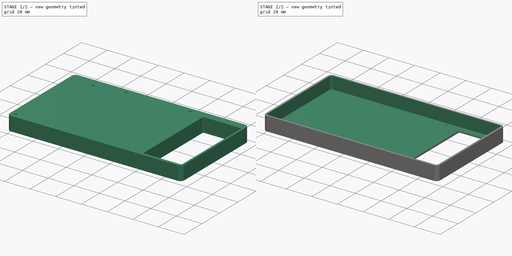
[diagram: build sequence overview — one tinted view per stage of 2, left to right]
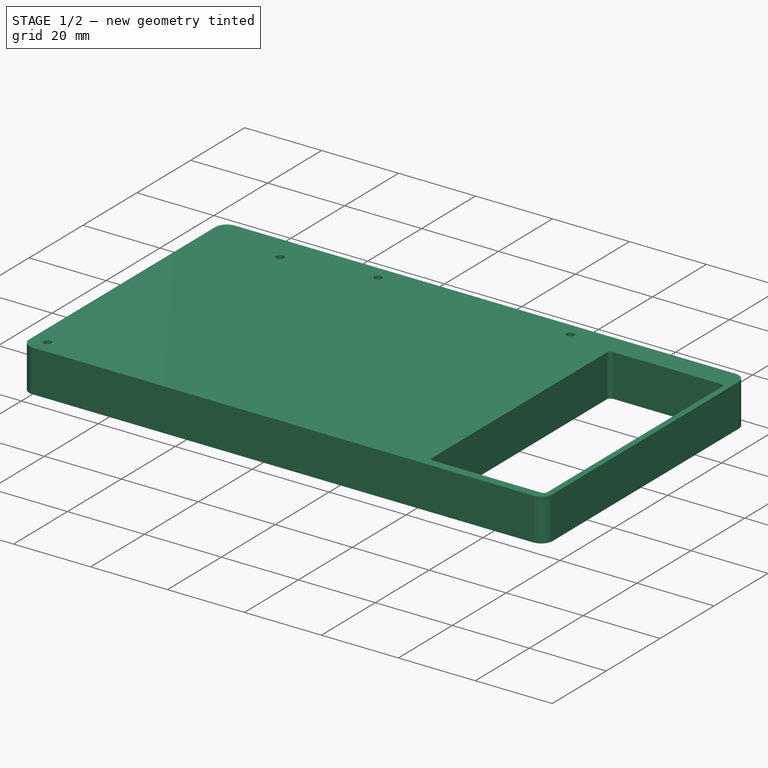
[diagram: stage 1 of 2 — iso view after this stage's code; geometry added in this stage tinted green]
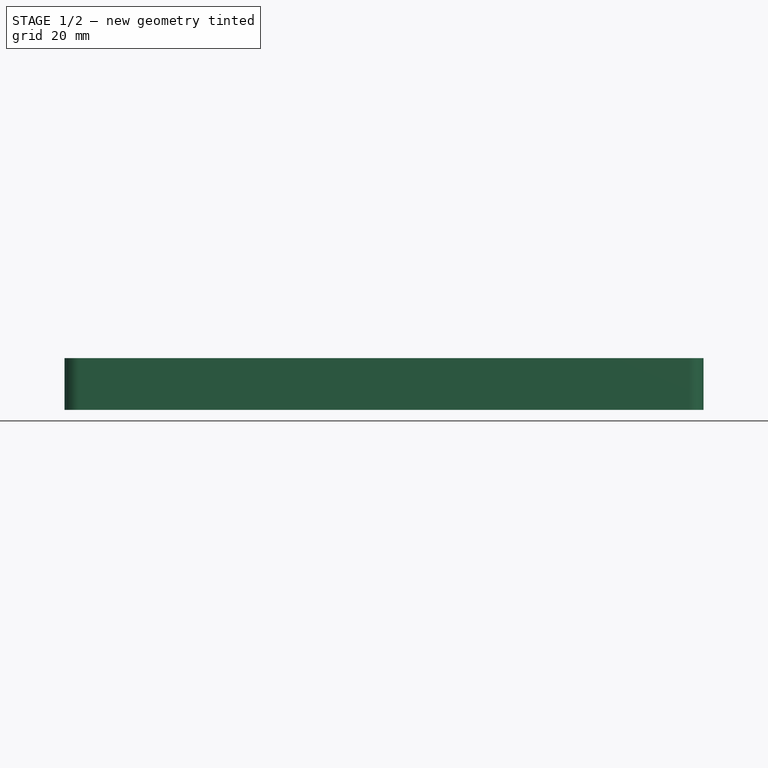
[diagram: stage 1 of 2 — front view after this stage's code; geometry added in this stage tinted green]
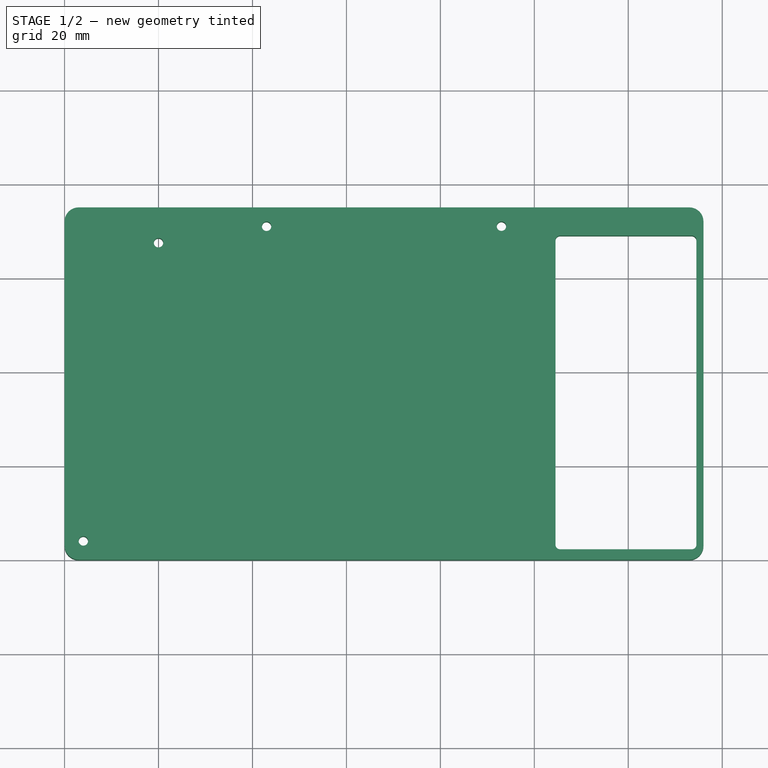
[diagram: stage 1 of 2 — top view after this stage's code; geometry added in this stage tinted green]
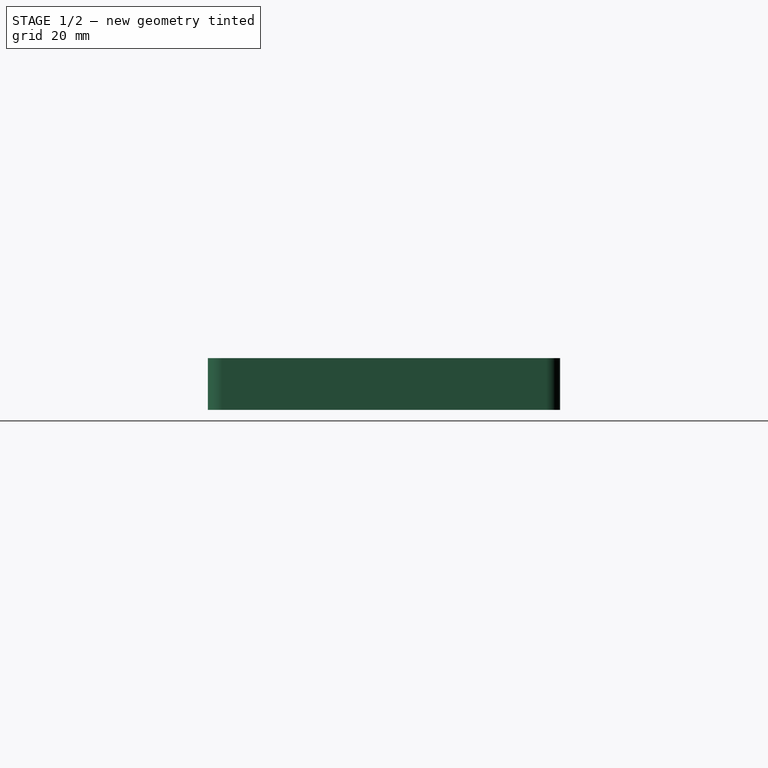
[diagram: stage 1 of 2 — right view after this stage's code; geometry added in this stage tinted green]
FCSTD DOCUMENT  (FreeCAD 0.22R38385 (Git))
Label: ndsi case 
License: All rights reserved
objects: Sketcher::SketchObject×1, PartDesign::Pad×1, PartDesign::Thickness×1, PartDesign::Body×1
note: 9 computed .brp shape members not serialized (recipe doc carries the construction recipe); baked Part::Feature solids carry a one-line shape summary decoded from their .brp

FEATURE [Sketcher::SketchObject] Sketch
  ArcFitTolerance = 1e-06
  AttachmentSupport = -> [XY_Plane]
  FullyConstrained = false
  MakeInternals = false
  MapMode = 5
  sketch-geometry (53):
    g0: LineSegment StartX=3 StartY=0 StartZ=0 EndX=133 EndY=0 EndZ=0
    g1: LineSegment StartX=136 StartY=3 StartZ=0 EndX=136 EndY=72 EndZ=0
    g2: LineSegment StartX=133 StartY=75 StartZ=0 EndX=3 EndY=75 EndZ=0
    g3: LineSegment StartX=0 StartY=72 StartZ=0 EndX=0 EndY=3 EndZ=0
    g4: ArcOfCircle CenterX=3 CenterY=3 CenterZ=0 NormalX=0 NormalY=0 NormalZ=1 AngleXU=0 Radius=3 StartAngle=3.14159 EndAngle=4.71239
    g5: ArcOfCircle CenterX=133 CenterY=3 CenterZ=0 NormalX=0 NormalY=0 NormalZ=1 AngleXU=0 Radius=3 StartAngle=4.71239 EndAngle=6.28319
    g6: ArcOfCircle CenterX=133 CenterY=72 CenterZ=0 NormalX=0 NormalY=0 NormalZ=1 AngleXU=0 Radius=3 StartAngle=-9e-16 EndAngle=1.5708
    g7: ArcOfCircle CenterX=3 CenterY=72 CenterZ=0 NormalX=0 NormalY=0 NormalZ=1 AngleXU=0 Radius=3 StartAngle=1.5708 EndAngle=3.14159
    g8: GeomPoint [constr] X=0 Y=0 Z=0
    g9: GeomPoint [constr] X=136 Y=75 Z=0
    g10: LineSegment [constr] StartX=136 StartY=0 StartZ=0 EndX=136 EndY=4 EndZ=0
    g11: LineSegment [constr] StartX=136 StartY=4 StartZ=0 EndX=106 EndY=4 EndZ=0
    g12: LineSegment [constr] StartX=106 StartY=4 StartZ=0 EndX=106 EndY=0 EndZ=0
    g13: LineSegment [constr] StartX=106 StartY=0 StartZ=0 EndX=136 EndY=0 EndZ=0
    g14: LineSegment [constr] StartX=136 StartY=75 StartZ=0 EndX=106 EndY=75 EndZ=0
    g15: LineSegment [constr] StartX=106 StartY=75 StartZ=0 EndX=106 EndY=67.5 EndZ=0
    g16: LineSegment [constr] StartX=106 StartY=67.5 StartZ=0 EndX=136 EndY=67.5 EndZ=0
    g17: LineSegment [constr] StartX=136 StartY=67.5 StartZ=0 EndX=136 EndY=75 EndZ=0
    g18: LineSegment [constr] StartX=0 StartY=0 StartZ=0 EndX=4 EndY=0 EndZ=0
    g19: LineSegment [constr] StartX=4 StartY=0 StartZ=0 EndX=4 EndY=4 EndZ=0
    g20: LineSegment [constr] StartX=4 StartY=4 StartZ=0 EndX=0 EndY=4 EndZ=0
    g21: LineSegment [constr] StartX=0 StartY=4 StartZ=0 EndX=0 EndY=0 EndZ=0
    g22: LineSegment [constr] StartX=0 StartY=74.9863 StartZ=0 EndX=0 EndY=67.4863 EndZ=0
    g23: LineSegment [constr] StartX=0 StartY=67.4863 StartZ=0 EndX=20 EndY=67.4863 EndZ=0
    g24: LineSegment [constr] StartX=20 StartY=67.4863 StartZ=0 EndX=20 EndY=74.9863 EndZ=0
    g25: LineSegment [constr] StartX=20 StartY=74.9863 StartZ=0 EndX=0 EndY=74.9863 EndZ=0
    g26: LineSegment [constr] StartX=0 StartY=74.9863 StartZ=0 EndX=0 EndY=70.9863 EndZ=0
    g27: LineSegment [constr] StartX=0 StartY=70.9863 StartZ=0 EndX=43 EndY=70.9863 EndZ=0
    g28: LineSegment [constr] StartX=43 StartY=70.9863 StartZ=0 EndX=43 EndY=74.9863 EndZ=0
    g29: LineSegment [constr] StartX=43 StartY=74.9863 StartZ=0 EndX=0 EndY=74.9863 EndZ=0
    g30: LineSegment [constr] StartX=136 StartY=75 StartZ=0 EndX=93 EndY=75 EndZ=0
    g31: LineSegment [constr] StartX=93 StartY=75 StartZ=0 EndX=93 EndY=71 EndZ=0
    g32: LineSegment [constr] StartX=93 StartY=71 StartZ=0 EndX=136 EndY=71 EndZ=0
    g33: LineSegment [constr] StartX=136 StartY=71 StartZ=0 EndX=136 EndY=75 EndZ=0
    g34: Circle CenterX=20 CenterY=67.4863 CenterZ=0 NormalX=0 NormalY=0 NormalZ=1 AngleXU=0 Radius=1
    g35: Circle CenterX=43 CenterY=70.9863 CenterZ=0 NormalX=0 NormalY=0 NormalZ=1 AngleXU=0 Radius=1
    g36: Circle CenterX=93 CenterY=71 CenterZ=0 NormalX=0 NormalY=0 NormalZ=1 AngleXU=0 Radius=1
    g37: Circle [constr] CenterX=106 CenterY=67.5 CenterZ=0 NormalX=0 NormalY=0 NormalZ=1 AngleXU=0 Radius=1
    g38: Circle [constr] CenterX=106 CenterY=4 CenterZ=0 NormalX=0 NormalY=0 NormalZ=1 AngleXU=0 Radius=0
    g39: Circle [constr] CenterX=106 CenterY=4 CenterZ=0 NormalX=0 NormalY=0 NormalZ=1 AngleXU=0 Radius=1
    g40: Circle CenterX=4 CenterY=4 CenterZ=0 NormalX=0 NormalY=0 NormalZ=1 AngleXU=0 Radius=1
    g41: LineSegment StartX=104.5 StartY=68 StartZ=0 EndX=104.5 EndY=3.2212 EndZ=0
    g42: LineSegment StartX=105.5 StartY=2.2212 StartZ=0 EndX=133.5 EndY=2.2212 EndZ=0
    g43: LineSegment StartX=134.5 StartY=3.2212 StartZ=0 EndX=134.5 EndY=68 EndZ=0
    g44: LineSegment StartX=133.5 StartY=69 StartZ=0 EndX=105.5 EndY=69 EndZ=0
    g45: ArcOfCircle CenterX=105.5 CenterY=68 CenterZ=0 NormalX=0 NormalY=0 NormalZ=1 AngleXU=0 Radius=1 StartAngle=1.5708 EndAngle=3.14159
    g46: ArcOfCircle CenterX=105.5 CenterY=3.2212 CenterZ=0 NormalX=0 NormalY=0 NormalZ=1 AngleXU=0 Radius=1 StartAngle=3.14159 EndAngle=4.71239
    g47: ArcOfCircle CenterX=133.5 CenterY=3.2212 CenterZ=0 NormalX=0 NormalY=0 NormalZ=1 AngleXU=0 Radius=1 StartAngle=4.71239 EndAngle=6.28319
    g48: ArcOfCircle CenterX=133.5 CenterY=68 CenterZ=0 NormalX=0 NormalY=0 NormalZ=1 AngleXU=0 Radius=1 StartAngle=1.8e-15 EndAngle=1.5708
    g49: GeomPoint [constr] X=104.5 Y=69 Z=0
    g50: GeomPoint [constr] X=134.5 Y=2.2212 Z=0
    g51: LineSegment [constr] StartX=136 StartY=3 StartZ=0 EndX=136 EndY=0 EndZ=0
    g52: LineSegment [constr] StartX=133 StartY=0 StartZ=0 EndX=136 EndY=0 EndZ=0
  constraints (130):
    c: Tangent(g0,g4) = -1.5708
    c: Tangent(g0,g5) = -1.5708
    c: Tangent(g1,g5) = -1.5708
    c: Tangent(g1,g6) = -1.5708
    c: Tangent(g2,g6) = -1.5708
    c: Tangent(g2,g7) = -1.5708
    c: Tangent(g3,g7) = -1.5708
    c: Tangent(g3,g4) = -1.5708
    c: Horizontal(g0)
    c: Horizontal(g2)
    c: Vertical(g1)
    c: Vertical(g3)
    c: Equal(g4,g5)
    c: Equal(g5,g6)
    c: Equal(g6,g7)
    c: PointOnObject(g8,g0)
    c: PointOnObject(g8,g3)
    c: PointOnObject(g9,g1)
    c: PointOnObject(g9,g2)
    c: Distance(g1,g3) = 136
    c: Distance(g0,g2) = 75
    c: Radius(g5) = 3
    c: Coincident(g8,g-1)
    c: Coincident(g10,g11)
    c: Coincident(g11,g12)
    c: Coincident(g12,g13)
    c: Coincident(g13,g10)
    c: Vertical(g10)
    c: Vertical(g12)
    c: Horizontal(g11)
    c: Horizontal(g13)
    c: Distance(g10,g12) = 30
    c: Distance(g11,g13) = 4
    c: Coincident(g14,g15)
    c: Coincident(g15,g16)
    c: Coincident(g16,g17)
    c: Coincident(g17,g14)
    c: Horizontal(g14)
    c: Horizontal(g16)
    c: Vertical(g15)
    c: Vertical(g17)
    c: Distance(g15,g17) = 30
    c: Distance(g14,g16) = 7.5
    c: Coincident(g14,g9)
    c: Coincident(g18,g19)
    c: Coincident(g19,g20)
    c: Coincident(g20,g21)
    c: Coincident(g21,g18)
    c: Horizontal(g18)
    c: Horizontal(g20)
    c: Vertical(g19)
    c: Vertical(g21)
    c: Distance(g19,g21) = 4
    c: Distance(g18,g20) = 4
    c: Coincident(g18,g8)
    c: Coincident(g22,g23)
    c: Coincident(g23,g24)
    c: Coincident(g24,g25)
    c: Coincident(g25,g22)
    c: Vertical(g22)
    c: Vertical(g24)
    c: Horizontal(g23)
    c: Horizontal(g25)
    c: Distance(g22,g24) = 20
    c: Distance(g23,g25) = 7.5
    c: PointOnObject(g22,g-2)
    c: Coincident(g26,g27)
    c: Coincident(g27,g28)
    c: Coincident(g28,g29)
    c: Coincident(g29,g26)
    c: Vertical(g26)
    c: Vertical(g28)
    c: Horizontal(g27)
    c: Horizontal(g29)
    c: Distance(g26,g28) = 43
    c: Distance(g27,g29) = 4
    c: Coincident(g26,g22)
    c: Coincident(g30,g31)
    c: Coincident(g31,g32)
    c: Coincident(g32,g33)
    c: Coincident(g33,g30)
    c: Horizontal(g30)
    c: Horizontal(g32)
    c: Vertical(g31)
    c: Vertical(g33)
    c: Distance(g31,g33) = 43
    c: Distance(g30,g32) = 4
    c: Coincident(g30,g9)
    c: Diameter(g34) = 2
    c: Tangent(g34,g23) = -1.5708
    c: Diameter(g35) = 2
    c: Coincident(g35,g27)
    c: Diameter(g36) = 2
    c: Coincident(g36,g31)
    c: Diameter(g37) = 2
    c: Coincident(g37,g15)
    c: Diameter(g39) = 2
    c: Coincident(g39,g38)
    c: Diameter(g40) = 2
    c: Coincident(g40,g19)
    c: Tangent(g41,g45) = -1.5708
    c: Tangent(g41,g46) = -1.5708
    c: Tangent(g42,g46) = -1.5708
    c: Tangent(g42,g47) = -1.5708
    c: Tangent(g43,g47) = -1.5708
    c: Tangent(g43,g48) = -1.5708
    c: Tangent(g44,g48) = -1.5708
    c: Tangent(g44,g45) = -1.5708
    c: Vertical(g41)
    c: Vertical(g43)
    c: Horizontal(g42)
    c: Horizontal(g44)
    c: Equal(g45,g46)
    c: Equal(g46,g47)
    c: Equal(g47,g48)
    c: PointOnObject(g49,g41)
    c: PointOnObject(g49,g44)
    c: PointOnObject(g50,g42)
    c: PointOnObject(g50,g43)
    c: Radius(g46) = 1
    c: Distance(g37,g44) = 0.5
    c: Distance(g37,g41) = 0.5
    c: Coincident(g51,g1)
    c: Vertical(g51)
    c: Coincident(g52,g51)
    c: Coincident(g52,g0)
    c: PointOnObject(g51,g-1)
    c: Coincident(g51,g10)
    c: Coincident(g38,g11)
    c: Distance(g1,g43) = 1.5
FEATURE [PartDesign::Pad] Pad
  Direction = (0,0,1)
  Length = 11
  Length2 = 10
  Profile = -> Sketch
  ReferenceAxis = -> Sketch [N_Axis]
  Refine = true
  Suppressed = false
  Type = 0
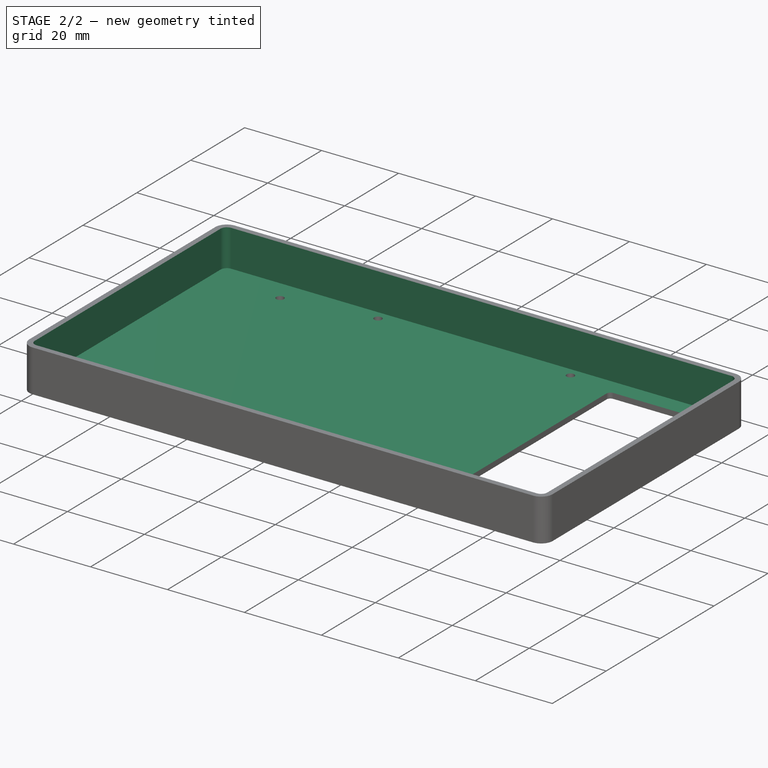
[diagram: stage 2 of 2 — iso view after this stage's code; geometry added in this stage tinted green]
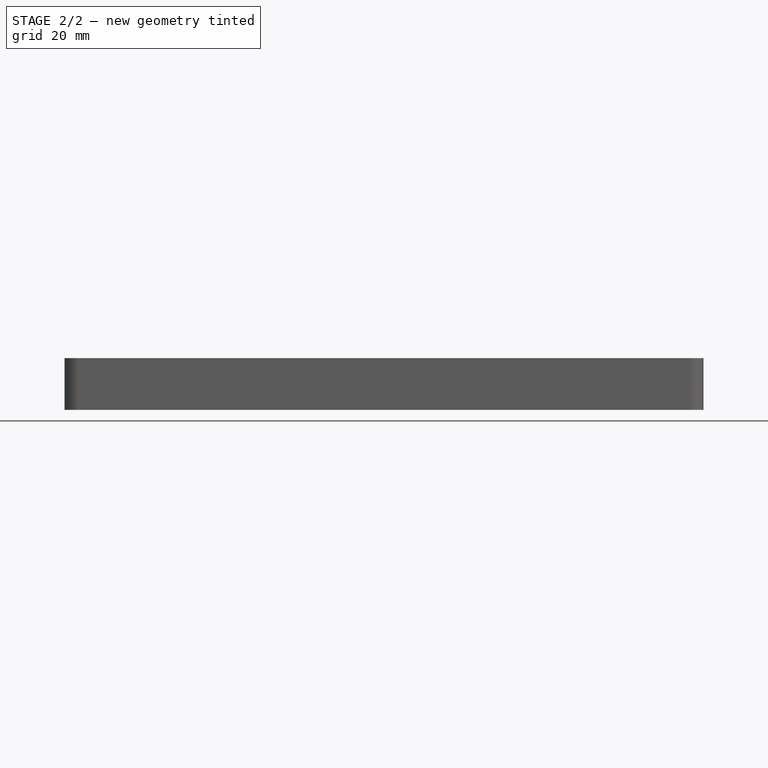
[diagram: stage 2 of 2 — front view after this stage's code; geometry added in this stage tinted green]
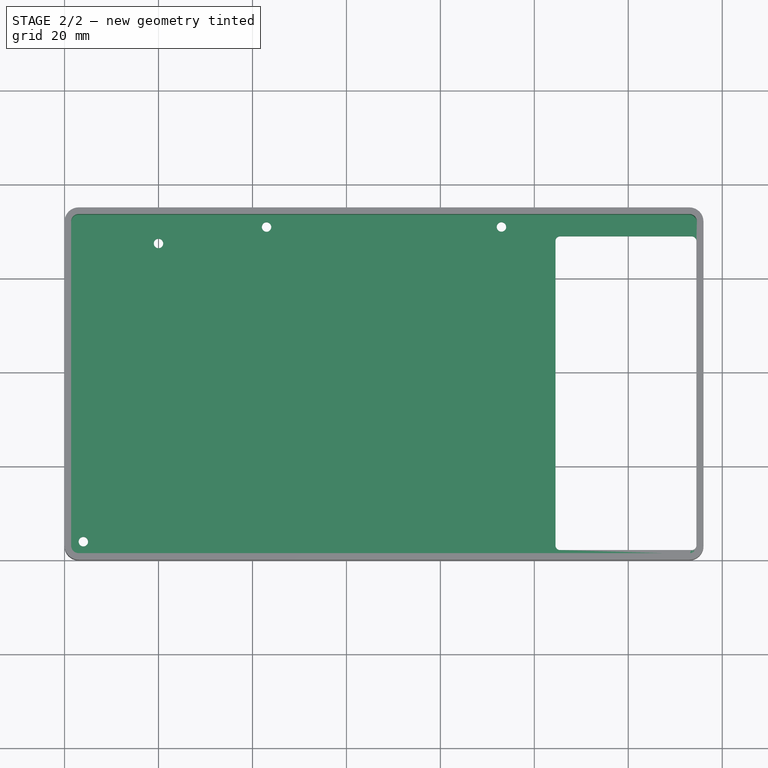
[diagram: stage 2 of 2 — top view after this stage's code; geometry added in this stage tinted green]
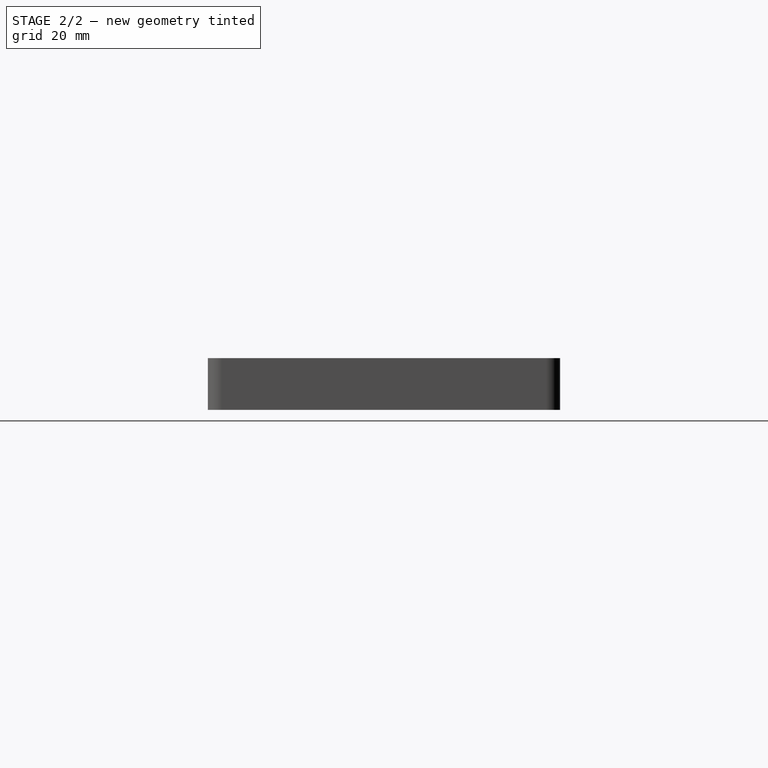
[diagram: stage 2 of 2 — right view after this stage's code; geometry added in this stage tinted green]
FEATURE [PartDesign::Thickness] Thickness
  Base = -> Pad [Face22,Face9,Face16,Face15,Face14,Face13,Face11,Face12,Face10,Face17,Face18,Face19,Face20]
  BaseFeature = -> Pad
  Intersection = false
  Join = 0
  Mode = 0
  Refine = true
  Reversed = true
  SupportTransform = false
  Suppressed = false
  Value = 1.4
FEATURE [PartDesign::Body] Body
  AllowCompound = false
  Group = -> [Sketch,Pad,Thickness]
  Origin = -> Origin
  Tip = -> Thickness
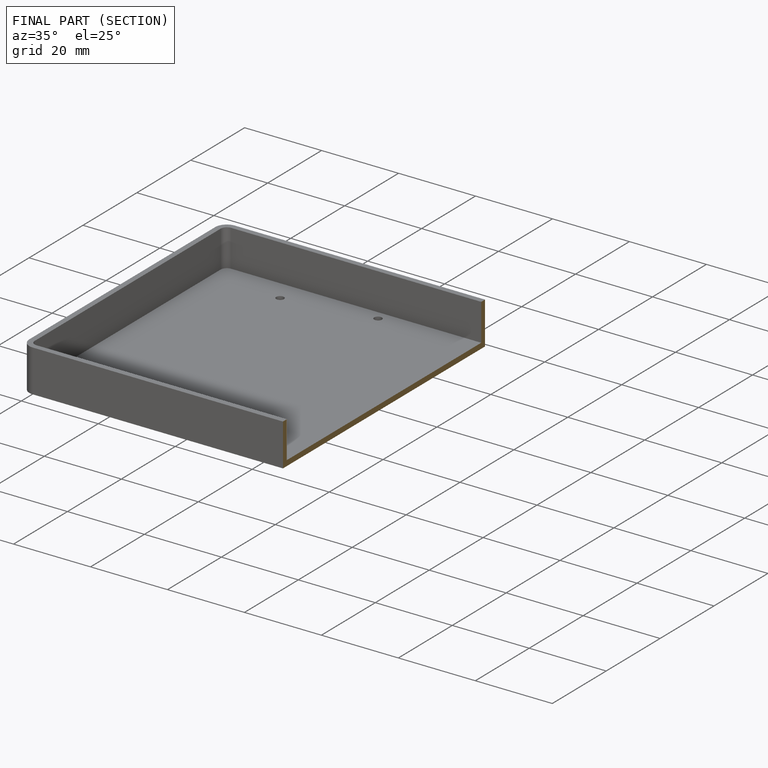
[diagram: finished part — half-section view (interior)]
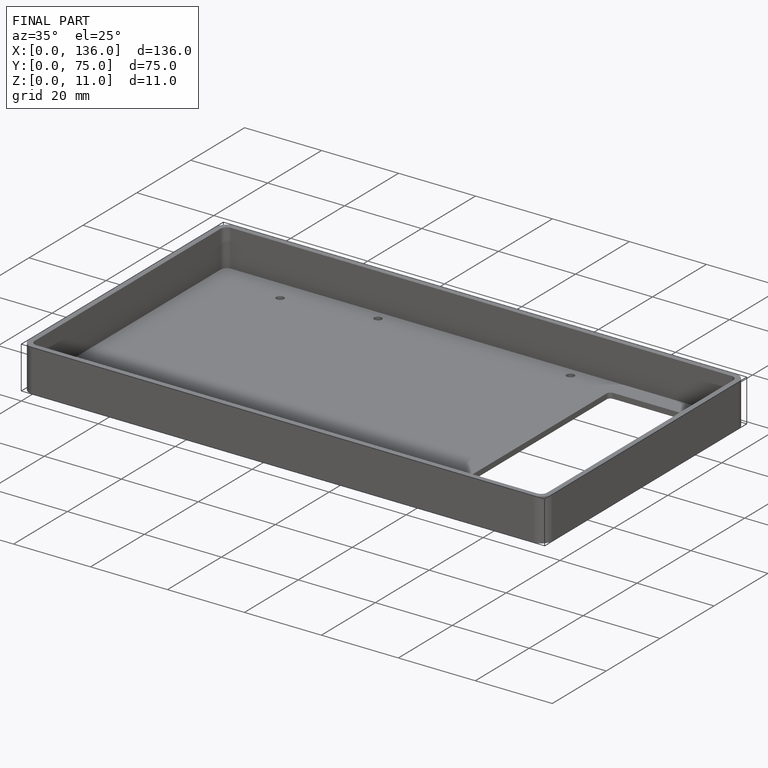
[diagram: finished part — iso view with bounding-box wireframe]
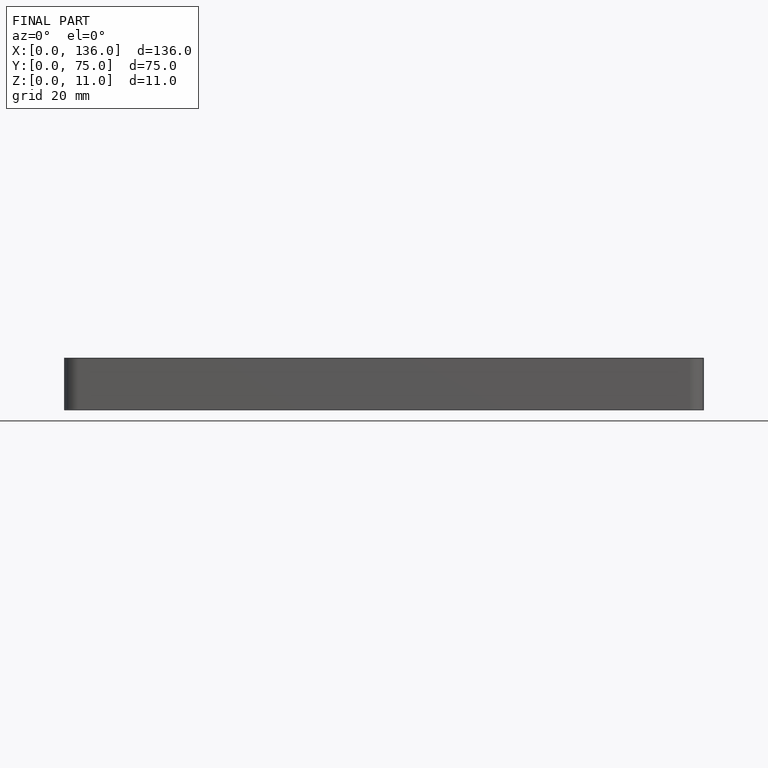
[diagram: finished part — front view with bounding-box wireframe]
